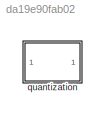
MODEL slx_da19e90fab02
KIND library
CONFIG AbsTol = auto
CONFIG EnableMultiTasking = off
CONFIG FixedStep = auto
CONFIG MaxStep = auto
CONFIG MinStep = auto
CONFIG RelTol = 1e-3
CONFIG SampleTimeConstraint = Unconstrained
CONFIG Solver = VariableStepAuto
CONFIG SolverName = VariableStepAuto
CONFIG StartTime = 0.0
CONFIG StopTime = 10.0
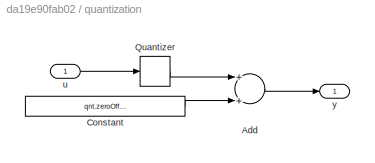
BLOCK [SubSystem] quantization
  Ports = [1, 1]
  RequestExecContextInheritance = off
BLOCK [Sum] quantization/Add
  InputSameDT = off
  OutDataTypeStr = Inherit: Inherit via internal rule
  Ports = [2, 1]
  SaturateOnIntegerOverflow = off
BLOCK [Constant] quantization/Constant
  Value = qnt.zeroOffset.Value
BLOCK [Quantizer] quantization/Quantizer
  QuantizationInterval = qnt.stepSize.Value
BLOCK [Inport] quantization/u
  IconDisplay = Port number
BLOCK [Outport] quantization/y
  IconDisplay = Port number
LINE quantization/Add:1 -> quantization/y:1
LINE quantization/Constant:1 -> quantization/Add:2
LINE quantization/Quantizer:1 -> quantization/Add:1
LINE quantization/u:1 -> quantization/Quantizer:1
